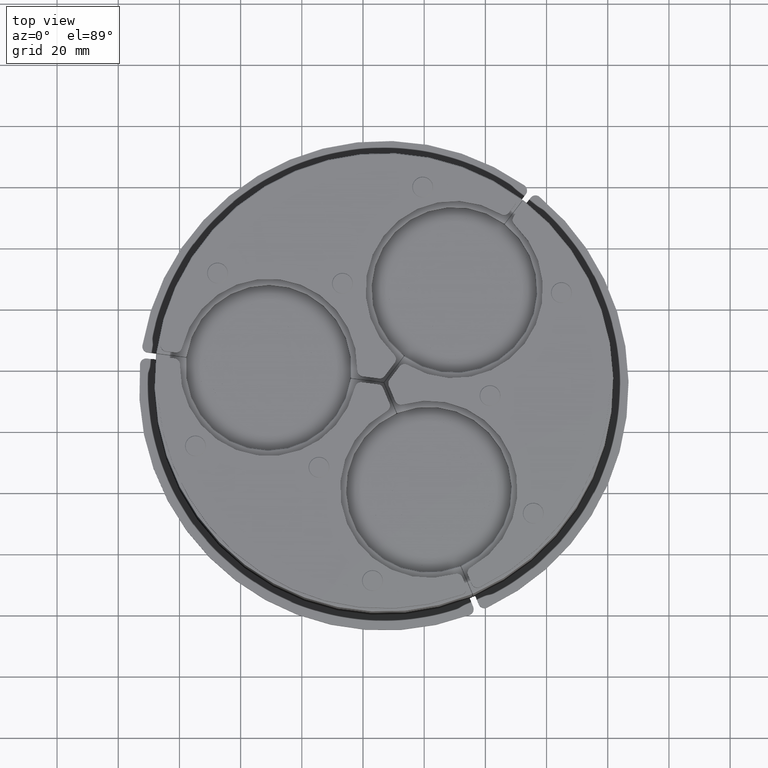
[diagram: clean part render]
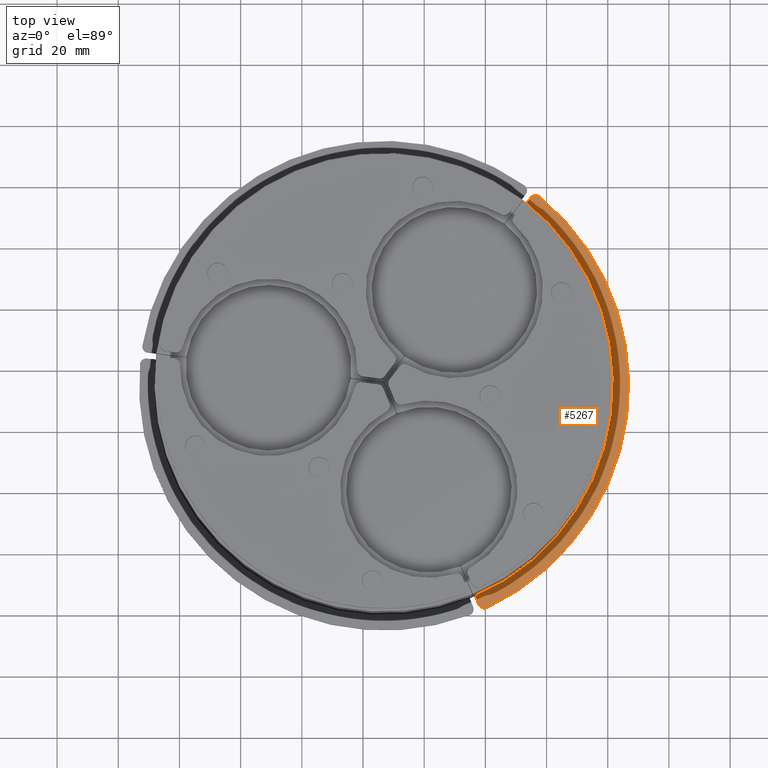
[diagram: same view with one face highlighted and labeled with its STEP entity id]
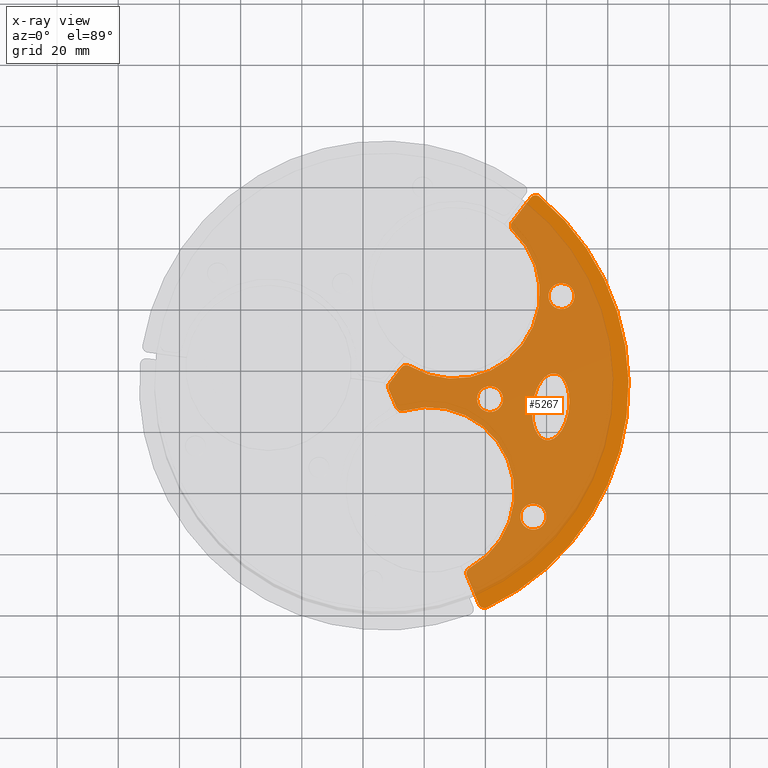
[diagram: x-ray of the same camera — body ghosted, the highlighted face saturated]
A machine part, top view. The second image highlights one B-rep face of the part: STEP entity #5267.
The next image is the same camera in x-ray: the body ghosted, the highlighted face saturated — about 79% of this face is hidden behind the body in this view.
In plain terms, the highlighted planar face has unit normal (-0, -0, -1).
Its self-contained STEP definition (entity closure, byte-faithful):
#5047=CARTESIAN_POINT('',(-17.973720558371276,53.131397208144087,0.0));
#5048=VERTEX_POINT('',#5047);
#5049=CARTESIAN_POINT('',(-27.500000000000099,47.631397208144072,0.0));
#5050=DIRECTION('',(0.0,0.0,1.0));
#5051=DIRECTION('',(-0.866025403784438,-0.500000000000002,0.0));
#5052=AXIS2_PLACEMENT_3D('',#5049,#5050,#5051);
#5053=ELLIPSE('',#5052,11.000000000000004,6.000000000000003);
#5054=EDGE_CURVE('',#5048,#5048,#5053,.T.);
#5086=CARTESIAN_POINT('',(38.105117766515136,68.000000000000099,0.0));
#5087=VERTEX_POINT('',#5086);
#5094=CARTESIAN_POINT('',(37.305709701483337,70.769230769230887,0.0));
#5095=VERTEX_POINT('',#5094);
#5096=CARTESIAN_POINT('',(36.373066958946254,69.000000000000099,0.0));
#5097=DIRECTION('',(0.0,0.0,1.0));
#5098=DIRECTION('',(0.960768922830522,0.277350098112619,0.0));
#5099=AXIS2_PLACEMENT_3D('',#5096,#5097,#5098);
#5100=CIRCLE('',#5099,2.0);
#5101=EDGE_CURVE('',#5087,#5095,#5100,.T.);
#5112=CARTESIAN_POINT('',(-22.665603254648026,39.257976421248685,0.0));
#5113=DIRECTION('',(0.0,0.0,1.0));
#5114=DIRECTION('',(1.0,0.0,0.0));
#5115=AXIS2_PLACEMENT_3D('',#5112,#5113,#5114);
#5116=PLANE('',#5115);
#5117=ORIENTED_EDGE('',*,*,#5101,.F.);
#5118=CARTESIAN_POINT('',(33.058786152814704,59.259497253229867,0.0));
#5119=VERTEX_POINT('',#5118);
#5120=CARTESIAN_POINT('',(38.105117766515129,68.000000000000114,0.0));
#5121=DIRECTION('',(-0.499999999999998,-0.86602540378444,0.0));
#5122=VECTOR('',#5121,10.092663227400907);
#5123=LINE('',#5120,#5122);
#5124=EDGE_CURVE('',#5087,#5119,#5123,.T.);
#5125=ORIENTED_EDGE('',*,*,#5124,.T.);
#5126=CARTESIAN_POINT('',(30.504952988896108,58.436128459268453,0.0));
#5127=VERTEX_POINT('',#5126);
#5128=CARTESIAN_POINT('',(31.326735345245822,60.259497253229867,0.0));
#5129=DIRECTION('',(0.0,0.0,1.0));
#5130=DIRECTION('',(0.306851432308292,-0.951757426285894,0.0));
#5131=AXIS2_PLACEMENT_3D('',#5128,#5129,#5130);
#5132=CIRCLE('',#5131,2.0);
#5133=EDGE_CURVE('',#5127,#5119,#5132,.T.);
#5134=ORIENTED_EDGE('',*,*,#5133,.F.);
#5135=CARTESIAN_POINT('',(2.645304749910871,10.181802228348964,0.0));
#5136=VERTEX_POINT('',#5135);
#5137=CARTESIAN_POINT('',(18.999999999999989,32.908965343808674,0.0));
#5138=DIRECTION('',(0.0,0.0,1.0));
#5139=DIRECTION('',(0.468751541994594,0.883330058289477,0.0));
#5140=AXIS2_PLACEMENT_3D('',#5137,#5138,#5139);
#5141=CIRCLE('',#5140,28.0);
#5142=EDGE_CURVE('',#5127,#5136,#5141,.T.);
#5143=ORIENTED_EDGE('',*,*,#5142,.T.);
#5144=CARTESIAN_POINT('',(3.20916303961625,7.55843343438756,0.0));
#5145=VERTEX_POINT('',#5144);
#5146=CARTESIAN_POINT('',(1.477112232047364,8.558433434387558,0.0));
#5147=DIRECTION('',(0.0,0.0,1.0));
#5148=DIRECTION('',(0.977671825558225,0.210137577576329,0.0));
#5149=AXIS2_PLACEMENT_3D('',#5146,#5147,#5148);
#5150=CIRCLE('',#5149,2.0);
#5151=EDGE_CURVE('',#5145,#5136,#5150,.T.);
#5152=ORIENTED_EDGE('',*,*,#5151,.F.);
#5153=CARTESIAN_POINT('',(-2.775558E-015,2.000000000000005,0.0));
#5154=VERTEX_POINT('',#5153);
#5155=CARTESIAN_POINT('',(3.209163039616249,7.558433434387558,0.0));
#5156=DIRECTION('',(-0.499999999999998,-0.86602540378444,0.0));
#5157=VECTOR('',#5156,6.418326079232535);
#5158=LINE('',#5155,#5157);
#5159=EDGE_CURVE('',#5145,#5154,#5158,.T.);
#5160=ORIENTED_EDGE('',*,*,#5159,.T.);
#5161=CARTESIAN_POINT('',(-1.732050807568884,1.0,0.0));
#5162=VERTEX_POINT('',#5161);
#5163=CARTESIAN_POINT('',(-1.732050807568884,3.0,0.0));
#5164=DIRECTION('',(0.0,0.0,1.0));
#5165=DIRECTION('',(0.500000000000001,-0.866025403784438,0.0));
#5166=AXIS2_PLACEMENT_3D('',#5163,#5164,#5165);
#5167=CIRCLE('',#5166,2.0);
#5168=EDGE_CURVE('',#5162,#5154,#5167,.T.);
#5169=ORIENTED_EDGE('',*,*,#5168,.F.);
#5170=CARTESIAN_POINT('',(-8.150376886801407,1.0,0.0));
#5171=VERTEX_POINT('',#5170);
#5172=CARTESIAN_POINT('',(-1.732050807568884,1.0,0.0));
#5173=DIRECTION('',(-1.0,0.0,0.0));
#5174=VECTOR('',#5173,6.418326079232523);
#5175=LINE('',#5172,#5174);
#5176=EDGE_CURVE('',#5162,#5171,#5175,.T.);
#5177=ORIENTED_EDGE('',*,*,#5176,.T.);
#5178=CARTESIAN_POINT('',(-10.140351761014642,2.8,0.0));
#5179=VERTEX_POINT('',#5178);
#5180=CARTESIAN_POINT('',(-8.150376886801407,3.0,0.0));
#5181=DIRECTION('',(0.0,0.0,1.0));
#5182=DIRECTION('',(-0.670820393249937,-0.741619848709566,0.0));
#5183=AXIS2_PLACEMENT_3D('',#5180,#5181,#5182);
#5184=CIRCLE('',#5183,2.0);
#5185=EDGE_CURVE('',#5179,#5171,#5184,.T.);
#5186=ORIENTED_EDGE('',*,*,#5185,.F.);
#5187=CARTESIAN_POINT('',(-65.859648238985372,2.799999999999839,0.0));
#5188=VERTEX_POINT('',#5187);
#5189=CARTESIAN_POINT('',(-38.0,0.0,0.0));
#5190=DIRECTION('',(0.0,0.0,1.0));
#5191=DIRECTION('',(0.999362041402373,0.035714285714286,0.0));
#5192=AXIS2_PLACEMENT_3D('',#5189,#5190,#5191);
#5193=CIRCLE('',#5192,27.999999999999996);
#5194=EDGE_CURVE('',#5179,#5188,#5193,.T.);
#5195=ORIENTED_EDGE('',*,*,#5194,.T.);
#5196=CARTESIAN_POINT('',(-67.849623113198618,0.999999999999828,0.0));
#5197=VERTEX_POINT('',#5196);
#5198=CARTESIAN_POINT('',(-67.849623113198604,2.999999999999827,0.0));
#5199=DIRECTION('',(0.0,0.0,1.0));
#5200=DIRECTION('',(0.670820393249934,-0.741619848709569,0.0));
#5201=AXIS2_PLACEMENT_3D('',#5198,#5199,#5200);
#5202=CIRCLE('',#5201,2.0);
#5203=EDGE_CURVE('',#5197,#5188,#5202,.T.);
#5204=ORIENTED_EDGE('',*,*,#5203,.F.);
#5205=CARTESIAN_POINT('',(-77.942286340599509,0.999999999999931,0.0));
#5206=VERTEX_POINT('',#5205);
#5207=CARTESIAN_POINT('',(-67.849623113198632,0.999999999999828,0.0));
#5208=DIRECTION('',(-1.0,0.0,0.0));
#5209=VECTOR('',#5208,10.092663227400891);
#5210=LINE('',#5207,#5209);
#5211=EDGE_CURVE('',#5197,#5206,#5210,.T.);
#5212=ORIENTED_EDGE('',*,*,#5211,.T.);
#5213=CARTESIAN_POINT('',(-79.940806503178976,3.076923076923021,0.0));
#5214=VERTEX_POINT('',#5213);
#5215=CARTESIAN_POINT('',(-77.942286340599495,2.999999999999945,0.0));
#5216=DIRECTION('',(0.0,0.0,1.0));
#5217=DIRECTION('',(-0.720576692122893,-0.693375245281536,0.0));
#5218=AXIS2_PLACEMENT_3D('',#5215,#5216,#5217);
#5219=CIRCLE('',#5218,2.0);
#5220=EDGE_CURVE('',#5214,#5206,#5219,.T.);
#5221=ORIENTED_EDGE('',*,*,#5220,.F.);
#5222=CARTESIAN_POINT('',(0.0,0.0,0.0));
#5223=DIRECTION('',(0.0,0.0,-1.0));
#5224=DIRECTION('',(-0.489135618426694,-0.872207742906663,0.0));
#5225=AXIS2_PLACEMENT_3D('',#5222,#5223,#5224);
#5226=CIRCLE('',#5225,80.000000000000014);
#5227=EDGE_CURVE('',#5214,#5095,#5226,.T.);
#5228=ORIENTED_EDGE('',*,*,#5227,.T.);
#5229=EDGE_LOOP('',(#5117,#5125,#5134,#5143,#5152,#5160,#5169,#5177,#5186,#5195,#5204,#5212,#5221,#5228));
#5230=FACE_OUTER_BOUND('',#5229,.T.);
#5231=ORIENTED_EDGE('',*,*,#5054,.T.);
#5232=EDGE_LOOP('',(#5231));
#5233=FACE_BOUND('',#5232,.T.);
#5234=CARTESIAN_POINT('',(-54.171613009445863,28.494124541290024,0.0));
#5235=VERTEX_POINT('',#5234);
#5236=CARTESIAN_POINT('',(-58.421613009445863,28.494124541290024,0.0));
#5237=DIRECTION('',(0.0,0.0,1.0));
#5238=DIRECTION('',(-1.0,0.0,0.0));
#5239=AXIS2_PLACEMENT_3D('',#5236,#5237,#5238);
#5240=CIRCLE('',#5239,4.25);
#5241=EDGE_CURVE('',#5235,#5235,#5240,.T.);
#5242=ORIENTED_EDGE('',*,*,#5241,.T.);
#5243=EDGE_LOOP('',(#5242));
#5244=FACE_BOUND('',#5243,.T.);
#5245=CARTESIAN_POINT('',(8.78417079336819,64.84166326688856,0.0));
#5246=VERTEX_POINT('',#5245);
#5247=CARTESIAN_POINT('',(4.53417079336819,64.84166326688856,0.0));
#5248=DIRECTION('',(0.0,0.0,1.0));
#5249=DIRECTION('',(-1.0,0.0,0.0));
#5250=AXIS2_PLACEMENT_3D('',#5247,#5248,#5249);
#5251=CIRCLE('',#5250,4.25);
#5252=EDGE_CURVE('',#5246,#5246,#5251,.T.);
#5253=ORIENTED_EDGE('',*,*,#5252,.T.);
#5254=EDGE_LOOP('',(#5253));
#5255=FACE_BOUND('',#5254,.T.);
#5256=CARTESIAN_POINT('',(-13.250000000000007,30.310889132455348,0.0));
#5257=VERTEX_POINT('',#5256);
#5258=CARTESIAN_POINT('',(-17.500000000000007,30.310889132455348,0.0));
#5259=DIRECTION('',(0.0,0.0,1.0));
#5260=DIRECTION('',(-1.0,0.0,0.0));
#5261=AXIS2_PLACEMENT_3D('',#5258,#5259,#5260);
#5262=CIRCLE('',#5261,4.25);
#5263=EDGE_CURVE('',#5257,#5257,#5262,.T.);
#5264=ORIENTED_EDGE('',*,*,#5263,.T.);
#5265=EDGE_LOOP('',(#5264));
#5266=FACE_BOUND('',#5265,.T.);
#5267=ADVANCED_FACE('',(#5230,#5233,#5244,#5255,#5266),#5116,.F.);